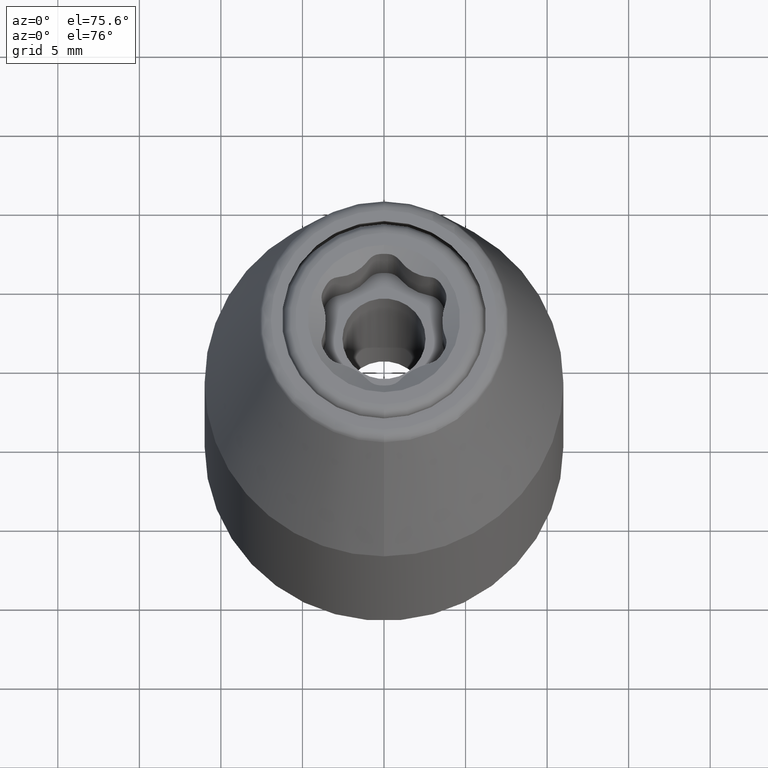
[diagram: clean part render]
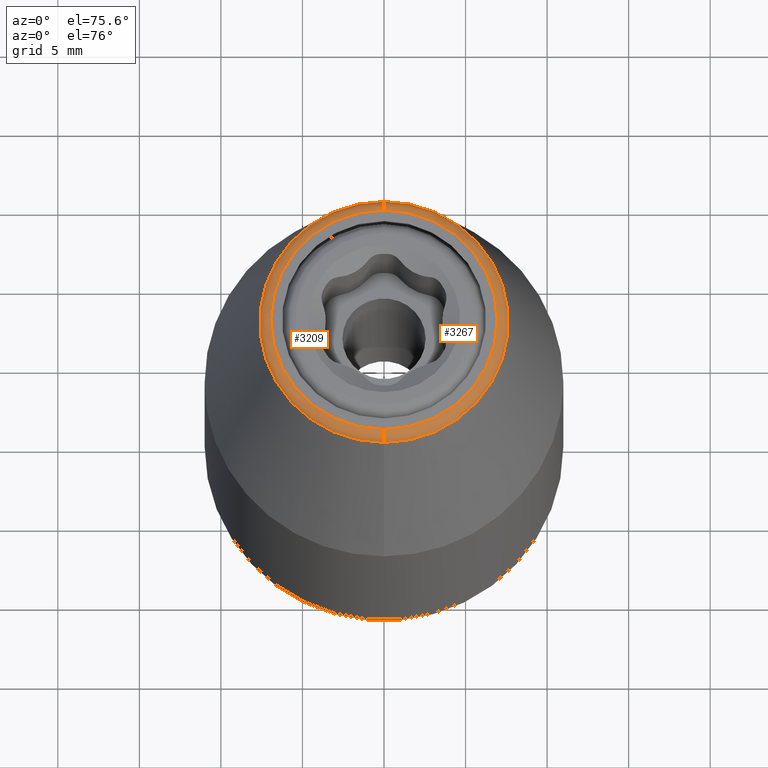
[diagram: same view with one multi-face feature highlighted, each face labeled with its STEP entity id]
A machine part, auxiliary view. The highlighted faces form ONE feature: a constant-radius fillet chain: 2 tangent blend faces with common blend radius 0.7 mm. The faces share edges in the B-rep.
Their STEP definitions:
[1] entity #3267 (Torus):
#2841=CARTESIAN_POINT('',(-2.904759766054E-12,-6.940440386616E0,3.1E1));
#2842=DIRECTION('',(1.E0,-4.185245899846E-13,0.E0));
#2843=DIRECTION('',(0.E0,0.E0,1.E0));
#2844=AXIS2_PLACEMENT_3D('',#2841,#2842,#2843);
#2857=CARTESIAN_POINT('',(0.E0,0.E0,3.17E1));
#2858=DIRECTION('',(0.E0,0.E0,1.E0));
#2859=DIRECTION('',(0.E0,1.E0,0.E0));
#2860=AXIS2_PLACEMENT_3D('',#2857,#2858,#2859);
#2895=CARTESIAN_POINT('',(2.905675700049E-12,6.940440386616E0,3.1E1));
#2896=DIRECTION('',(-1.E0,4.186581636922E-13,0.E0));
#2897=DIRECTION('',(0.E0,0.E0,1.E0));
#2898=AXIS2_PLACEMENT_3D('',#2895,#2896,#2897);
#2903=CARTESIAN_POINT('',(0.E0,0.E0,3.115418261E1));
#2904=DIRECTION('',(0.E0,0.E0,1.E0));
#2905=DIRECTION('',(0.E0,1.E0,0.E0));
#2906=AXIS2_PLACEMENT_3D('',#2903,#2904,#2905);
#2991=CARTESIAN_POINT('',(0.E0,-6.940440386616E0,3.17E1));
#2992=CARTESIAN_POINT('',(0.E0,6.940440386616E0,3.17E1));
#2993=VERTEX_POINT('',#2991);
#2994=VERTEX_POINT('',#2992);
#2995=CARTESIAN_POINT('',(0.E0,-7.623249088064E0,3.115418261E1));
#2996=CARTESIAN_POINT('',(0.E0,7.623249088064E0,3.115418261E1));
#2997=VERTEX_POINT('',#2995);
#2998=VERTEX_POINT('',#2996);
#3255=CARTESIAN_POINT('',(0.E0,0.E0,3.1E1));
#3256=DIRECTION('',(0.E0,0.E0,-1.E0));
#3257=DIRECTION('',(1.054116625113E-2,9.999444403636E-1,0.E0));
#3258=AXIS2_PLACEMENT_3D('',#3255,#3256,#3257);
#3259=TOROIDAL_SURFACE('',#3258,6.940440386616E0,7.E-1);
#3260=ORIENTED_EDGE('',*,*,#3216,.T.);
#3261=ORIENTED_EDGE('',*,*,#3205,.T.);
#3263=ORIENTED_EDGE('',*,*,#3262,.F.);
#3264=ORIENTED_EDGE('',*,*,#3202,.F.);
#3265=EDGE_LOOP('',(#3260,#3261,#3263,#3264));
#3266=FACE_OUTER_BOUND('',#3265,.F.);
#3267=ADVANCED_FACE('',(#3266),#3259,.T.);
#2845=CIRCLE('',#2844,7.E-1);
#2861=CIRCLE('',#2860,6.940440386616E0);
#2899=CIRCLE('',#2898,7.E-1);
#2907=CIRCLE('',#2906,7.623249088064E0);
#3202=EDGE_CURVE('',#2994,#2998,#2899,.T.);
#3205=EDGE_CURVE('',#2993,#2997,#2845,.T.);
#3216=EDGE_CURVE('',#2994,#2993,#2861,.T.);
#3262=EDGE_CURVE('',#2998,#2997,#2907,.T.);
[2] entity #3209 (Torus):
#2833=CARTESIAN_POINT('',(0.E0,0.E0,3.115418261E1));
#2834=DIRECTION('',(0.E0,0.E0,1.E0));
#2835=DIRECTION('',(0.E0,-1.E0,0.E0));
#2836=AXIS2_PLACEMENT_3D('',#2833,#2834,#2835);
#2841=CARTESIAN_POINT('',(-2.904759766054E-12,-6.940440386616E0,3.1E1));
#2842=DIRECTION('',(1.E0,-4.185245899846E-13,0.E0));
#2843=DIRECTION('',(0.E0,0.E0,1.E0));
#2844=AXIS2_PLACEMENT_3D('',#2841,#2842,#2843);
#2849=CARTESIAN_POINT('',(0.E0,0.E0,3.17E1));
#2850=DIRECTION('',(0.E0,0.E0,1.E0));
#2851=DIRECTION('',(0.E0,-1.E0,0.E0));
#2852=AXIS2_PLACEMENT_3D('',#2849,#2850,#2851);
#2895=CARTESIAN_POINT('',(2.905675700049E-12,6.940440386616E0,3.1E1));
#2896=DIRECTION('',(-1.E0,4.186581636922E-13,0.E0));
#2897=DIRECTION('',(0.E0,0.E0,1.E0));
#2898=AXIS2_PLACEMENT_3D('',#2895,#2896,#2897);
#2991=CARTESIAN_POINT('',(0.E0,-6.940440386616E0,3.17E1));
#2992=CARTESIAN_POINT('',(0.E0,6.940440386616E0,3.17E1));
#2993=VERTEX_POINT('',#2991);
#2994=VERTEX_POINT('',#2992);
#2995=CARTESIAN_POINT('',(0.E0,-7.623249088064E0,3.115418261E1));
#2996=CARTESIAN_POINT('',(0.E0,7.623249088064E0,3.115418261E1));
#2997=VERTEX_POINT('',#2995);
#2998=VERTEX_POINT('',#2996);
#3195=CARTESIAN_POINT('',(0.E0,0.E0,3.1E1));
#3196=DIRECTION('',(0.E0,0.E0,-1.E0));
#3197=DIRECTION('',(-1.054116625113E-2,-9.999444403636E-1,0.E0));
#3198=AXIS2_PLACEMENT_3D('',#3195,#3196,#3197);
#3199=TOROIDAL_SURFACE('',#3198,6.940440386616E0,7.E-1);
#3201=ORIENTED_EDGE('',*,*,#3200,.T.);
#3203=ORIENTED_EDGE('',*,*,#3202,.T.);
#3204=ORIENTED_EDGE('',*,*,#3184,.F.);
#3206=ORIENTED_EDGE('',*,*,#3205,.F.);
#3207=EDGE_LOOP('',(#3201,#3203,#3204,#3206));
#3208=FACE_OUTER_BOUND('',#3207,.F.);
#3209=ADVANCED_FACE('',(#3208),#3199,.T.);
#2837=CIRCLE('',#2836,7.623249088064E0);
#2845=CIRCLE('',#2844,7.E-1);
#2853=CIRCLE('',#2852,6.940440386616E0);
#2899=CIRCLE('',#2898,7.E-1);
#3184=EDGE_CURVE('',#2997,#2998,#2837,.T.);
#3200=EDGE_CURVE('',#2993,#2994,#2853,.T.);
#3202=EDGE_CURVE('',#2994,#2998,#2899,.T.);
#3205=EDGE_CURVE('',#2993,#2997,#2845,.T.);